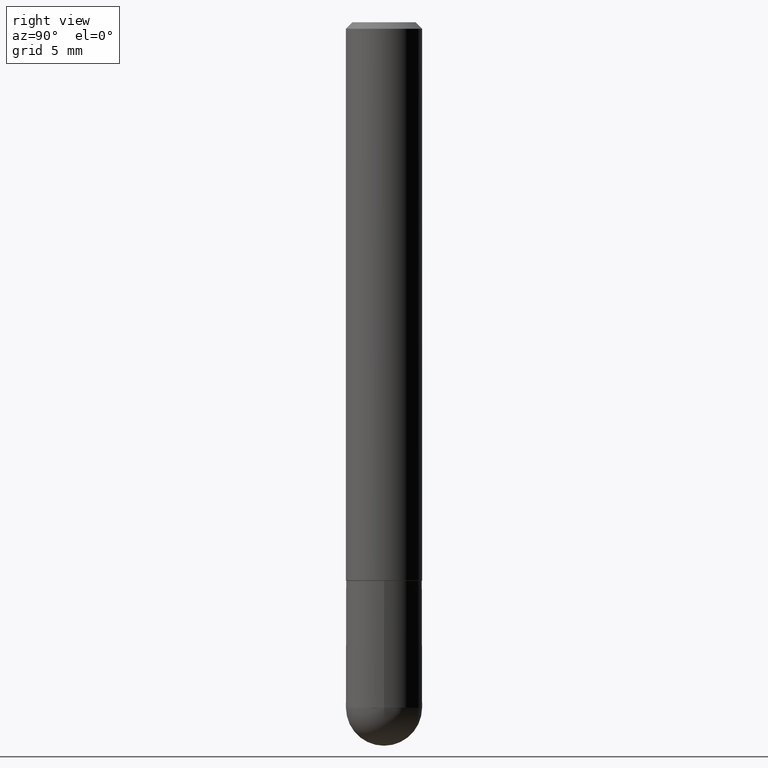
[diagram: clean part render]
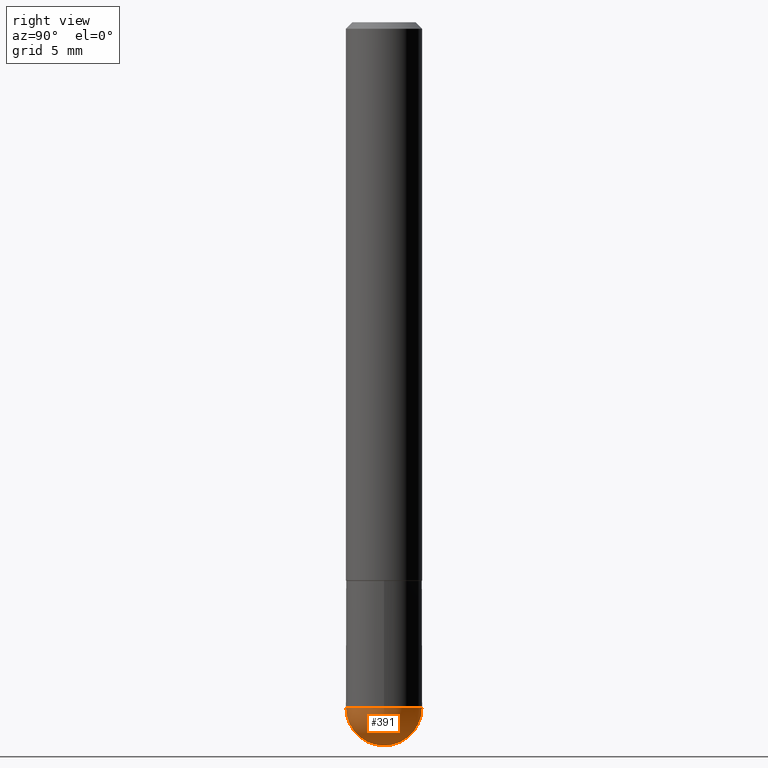
[diagram: same view with one face highlighted and labeled with its STEP entity id]
A machine part, right view. The second image highlights one B-rep face of the part: STEP entity #391.
In plain terms, the highlighted spherical surface has radius 2.9997 mm.
Its self-contained STEP definition (entity closure, byte-faithful):
#22 = EDGE_CURVE ( 'NONE', #385, #282, #376, .T. ) ;
#49 = ORIENTED_EDGE ( 'NONE', *, *, #22, .F. ) ;
#61 = CARTESIAN_POINT ( 'NONE',  ( 8.246878922347992427E-16, 0.1180999999999924471, -2.126000000000000334 ) ) ;
#77 = AXIS2_PLACEMENT_3D ( 'NONE', #246, #181, #273 ) ;
#80 = EDGE_CURVE ( 'NONE', #385, #232, #84, .T. ) ;
#84 = CIRCLE ( 'NONE', #253, 0.1181000000000002603 ) ;
#99 = CIRCLE ( 'NONE', #268, 0.1180999999999999966 ) ;
#128 = DIRECTION ( 'NONE',  ( 1.000000000000000000, -6.982962677686265133E-15, 0.000000000000000000 ) ) ;
#131 = CARTESIAN_POINT ( 'NONE',  ( 5.199066681949599750E-29, -7.422889326380526631E-15, -2.125999999999999890 ) ) ;
#134 = SPHERICAL_SURFACE ( 'NONE', #271, 0.1181000000000002603 ) ;
#138 = ORIENTED_EDGE ( 'NONE', *, *, #80, .T. ) ;
#181 = DIRECTION ( 'NONE',  ( -1.000000000000000000, 7.105427357601001070E-15, -4.926315508542082329E-29 ) ) ;
#187 = AXIS2_PLACEMENT_3D ( 'NONE', #264, #357, #189 ) ;
#188 = ORIENTED_EDGE ( 'NONE', *, *, #254, .F. ) ;
#189 = DIRECTION ( 'NONE',  ( 1.000000000000000000, -6.982962677686265133E-15, 0.000000000000000000 ) ) ;
#191 = CARTESIAN_POINT ( 'NONE',  ( 0.1180999999999999966, -7.560279117064003300E-15, -2.125999999999999890 ) ) ;
#192 = DIRECTION ( 'NONE',  ( 6.982962677686265133E-15, 1.000000000000000000, 0.000000000000000000 ) ) ;
#198 = DIRECTION ( 'NONE',  ( -2.445468806185136597E-29, 3.491481338843145583E-15, 1.000000000000000000 ) ) ;
#225 = CARTESIAN_POINT ( 'NONE',  ( -8.391509709326287947E-16, -0.1181000000000077821, -2.125999999999999446 ) ) ;
#229 = CARTESIAN_POINT ( 'NONE',  ( 4.867946904035714063E-29, -7.897071694520576927E-15, -2.125999999999999890 ) ) ;
#232 = VERTEX_POINT ( 'NONE', #61 ) ;
#246 = CARTESIAN_POINT ( 'NONE',  ( 4.867946904035714063E-29, -7.897071694520576927E-15, -2.125999999999999890 ) ) ;
#253 = AXIS2_PLACEMENT_3D ( 'NONE', #259, #382, #192 ) ;
#254 = EDGE_CURVE ( 'NONE', #282, #335, #99, .T. ) ;
#259 = CARTESIAN_POINT ( 'NONE',  ( 4.867946904035714063E-29, -7.897071694520576927E-15, -2.125999999999999890 ) ) ;
#260 = CARTESIAN_POINT ( 'NONE',  ( 5.161806526983783890E-29, -8.302184101288988852E-15, -2.244100000000000428 ) ) ;
#264 = CARTESIAN_POINT ( 'NONE',  ( 5.199066681949599750E-29, -7.422889326380526631E-15, -2.125999999999999890 ) ) ;
#268 = AXIS2_PLACEMENT_3D ( 'NONE', #131, #198, #128 ) ;
#271 = AXIS2_PLACEMENT_3D ( 'NONE', #229, #375, #354 ) ;
#273 = DIRECTION ( 'NONE',  ( -7.105427357601000281E-15, -1.000000000000000000, 0.000000000000000000 ) ) ;
#282 = VERTEX_POINT ( 'NONE', #225 ) ;
#331 = CIRCLE ( 'NONE', #187, 0.1180999999999999966 ) ;
#332 = EDGE_CURVE ( 'NONE', #335, #232, #331, .T. ) ;
#333 = EDGE_LOOP ( 'NONE', ( #49, #138, #397, #188 ) ) ;
#335 = VERTEX_POINT ( 'NONE', #191 ) ;
#354 = DIRECTION ( 'NONE',  ( 6.982962677686265922E-15, 1.000000000000000000, -4.626330217890359870E-15 ) ) ;
#357 = DIRECTION ( 'NONE',  ( -2.445468806185136597E-29, 3.491481338843145583E-15, 1.000000000000000000 ) ) ;
#375 = DIRECTION ( 'NONE',  ( -1.000000000000000000, 6.982962677686265922E-15, -4.883557194083112901E-29 ) ) ;
#376 = CIRCLE ( 'NONE', #77, 0.1181000000000002603 ) ;
#379 = FACE_OUTER_BOUND ( 'NONE', #333, .T. ) ;
#382 = DIRECTION ( 'NONE',  ( 1.000000000000000000, -6.982962677686265922E-15, 4.883557194083112340E-29 ) ) ;
#385 = VERTEX_POINT ( 'NONE', #260 ) ;
#391 = ADVANCED_FACE ( 'NONE', ( #379 ), #134, .T. ) ;
#397 = ORIENTED_EDGE ( 'NONE', *, *, #332, .F. ) ;